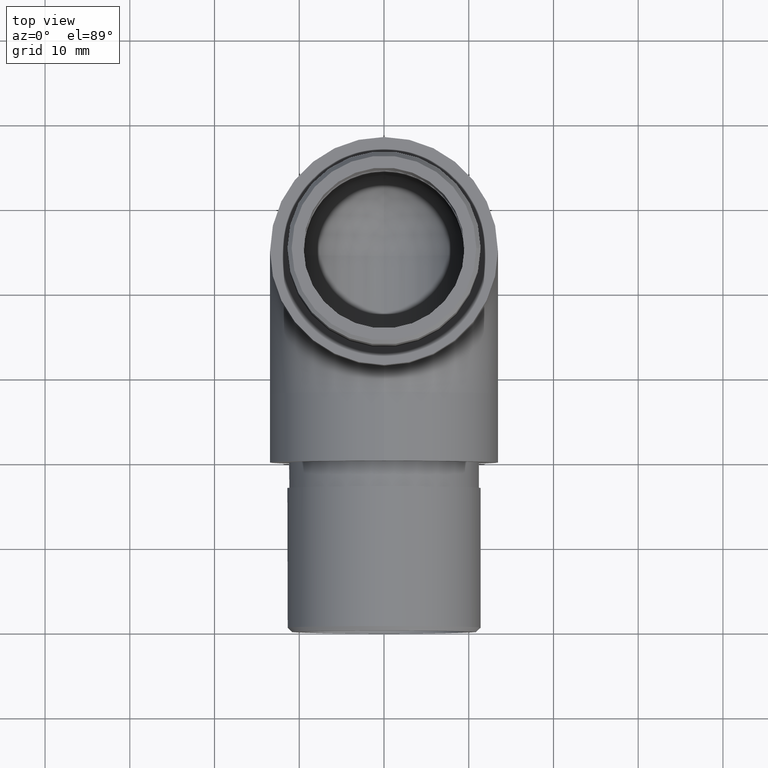
[diagram: clean part render]
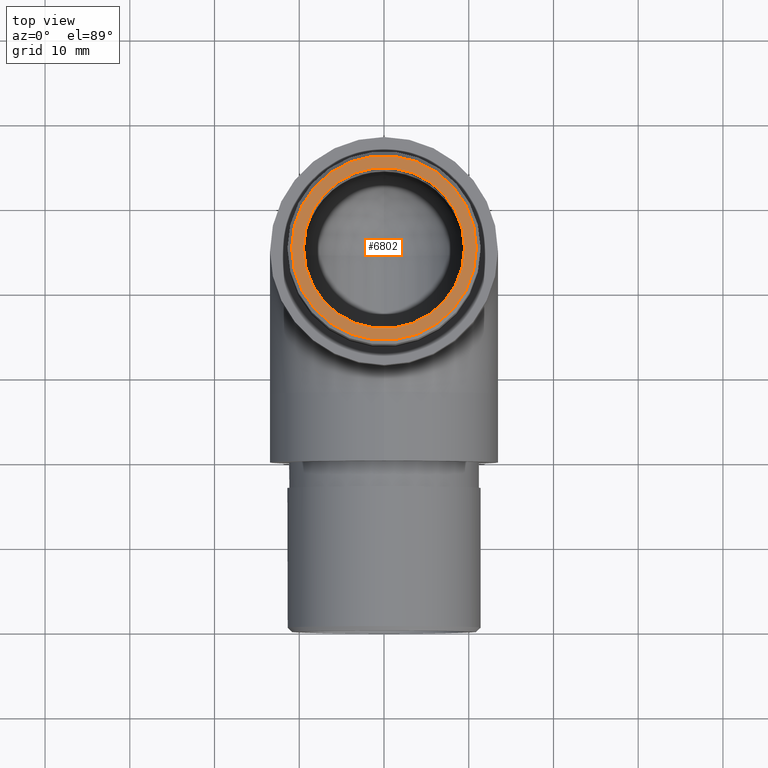
[diagram: same view with one face highlighted and labeled with its STEP entity id]
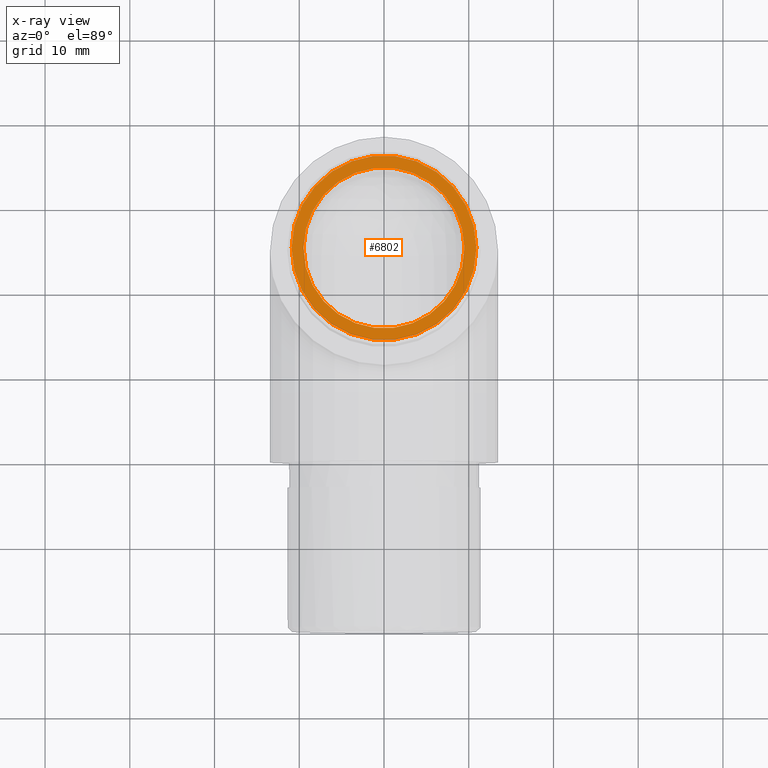
[diagram: x-ray of the same camera — body ghosted, the highlighted face saturated]
A machine part, top view. The second image highlights one B-rep face of the part: STEP entity #6802.
The next image is the same camera in x-ray: the body ghosted, the highlighted face saturated — about 0% of this face is hidden behind the body in this view.
In plain terms, the highlighted planar face has unit normal (0, 0, 1).
Its self-contained STEP definition (entity closure, byte-faithful):
#307 = EDGE_LOOP ( 'NONE', ( #5654 ) ) ;
#2125 = CARTESIAN_POINT ( 'NONE',  ( 2.618207179355330000E-015, 24.54999999999999700, 44.55000000000000400 ) ) ;
#2260 = VERTEX_POINT ( 'NONE', #11365 ) ;
#2421 = CIRCLE ( 'NONE', #11395, 10.89999999999999100 ) ;
#2583 = VERTEX_POINT ( 'NONE', #9170 ) ;
#2867 = DIRECTION ( 'NONE',  ( 1.000000000000000000, 0.0000000000000000000, 0.0000000000000000000 ) ) ;
#2898 = PLANE ( 'NONE',  #4330 ) ;
#3698 = EDGE_CURVE ( 'NONE', #2260, #2260, #4639, .T. ) ;
#4092 = FACE_OUTER_BOUND ( 'NONE', #307, .T. ) ;
#4189 = DIRECTION ( 'NONE',  ( 1.000000000000000000, 0.0000000000000000000, -0.0000000000000000000 ) ) ;
#4330 = AXIS2_PLACEMENT_3D ( 'NONE', #2125, #8256, #4189 ) ;
#4639 = CIRCLE ( 'NONE', #13766, 9.500000000000000000 ) ;
#4999 = CARTESIAN_POINT ( 'NONE',  ( 2.618207179355330000E-015, 24.54999999999999700, 44.55000000000000400 ) ) ;
#5654 = ORIENTED_EDGE ( 'NONE', *, *, #8442, .T. ) ;
#6052 = ORIENTED_EDGE ( 'NONE', *, *, #3698, .F. ) ;
#6093 = DIRECTION ( 'NONE',  ( 1.000000000000000000, 0.0000000000000000000, 0.0000000000000000000 ) ) ;
#6802 = ADVANCED_FACE ( 'NONE', ( #4092, #7294 ), #2898, .T. ) ;
#7294 = FACE_BOUND ( 'NONE', #12107, .T. ) ;
#8256 = DIRECTION ( 'NONE',  ( 0.0000000000000000000, 0.0000000000000000000, 1.000000000000000000 ) ) ;
#8442 = EDGE_CURVE ( 'NONE', #2583, #2583, #2421, .T. ) ;
#9170 = CARTESIAN_POINT ( 'NONE',  ( 10.89999999999999500, 24.54999999999999700, 44.55000000000000400 ) ) ;
#10324 = DIRECTION ( 'NONE',  ( 0.0000000000000000000, 0.0000000000000000000, 1.000000000000000000 ) ) ;
#10369 = CARTESIAN_POINT ( 'NONE',  ( 2.618207179355330000E-015, 24.54999999999999700, 44.55000000000000400 ) ) ;
#11365 = CARTESIAN_POINT ( 'NONE',  ( 9.500000000000003600, 24.54999999999999700, 44.55000000000000400 ) ) ;
#11395 = AXIS2_PLACEMENT_3D ( 'NONE', #10369, #10324, #2867 ) ;
#12107 = EDGE_LOOP ( 'NONE', ( #6052 ) ) ;
#13602 = DIRECTION ( 'NONE',  ( 0.0000000000000000000, 0.0000000000000000000, 1.000000000000000000 ) ) ;
#13766 = AXIS2_PLACEMENT_3D ( 'NONE', #4999, #13602, #6093 ) ;